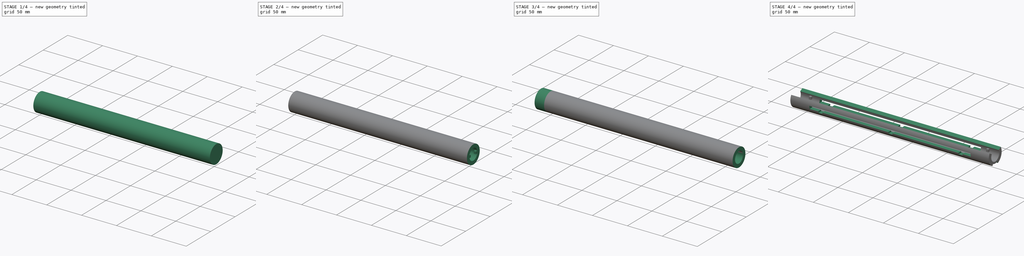
[diagram: build sequence overview — one tinted view per stage of 4, left to right]
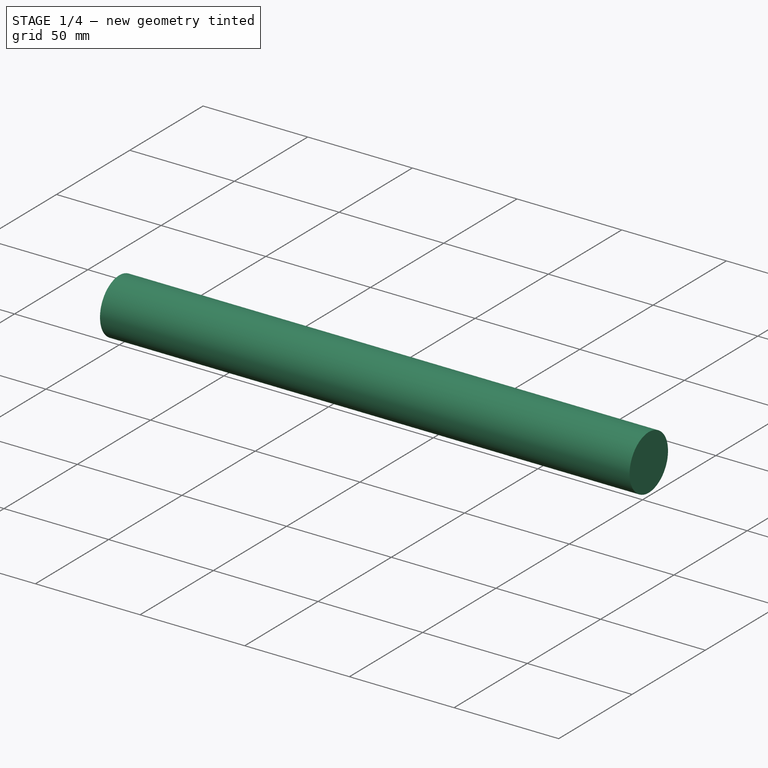
[diagram: stage 1 of 4 — iso view after this stage's code; geometry added in this stage tinted green]
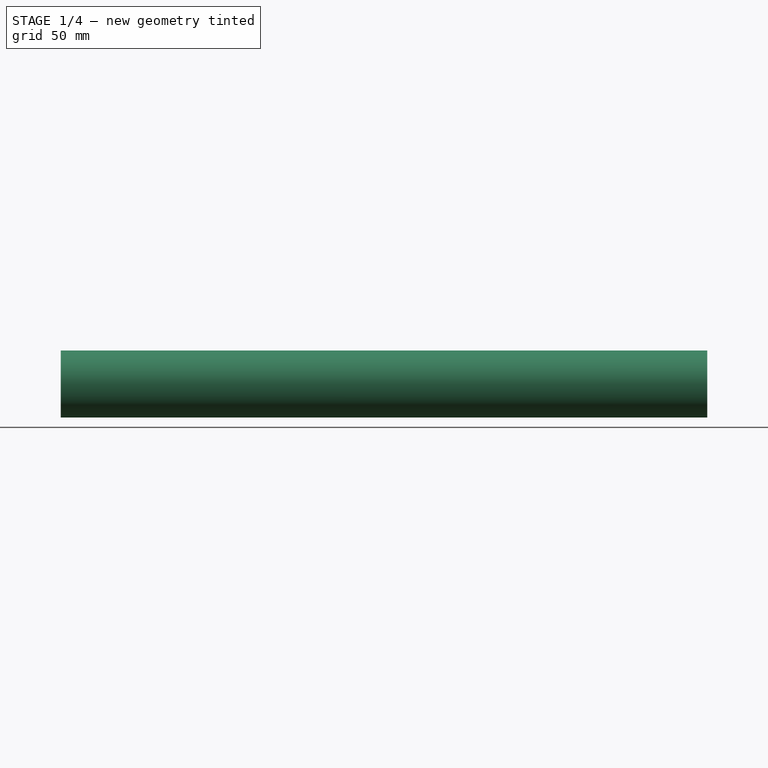
[diagram: stage 1 of 4 — front view after this stage's code; geometry added in this stage tinted green]
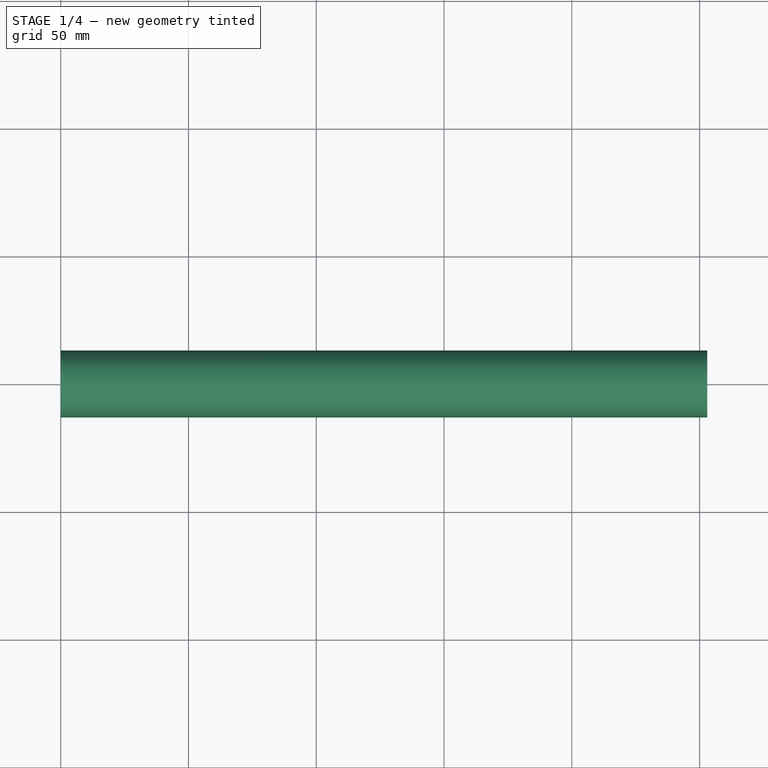
[diagram: stage 1 of 4 — top view after this stage's code; geometry added in this stage tinted green]
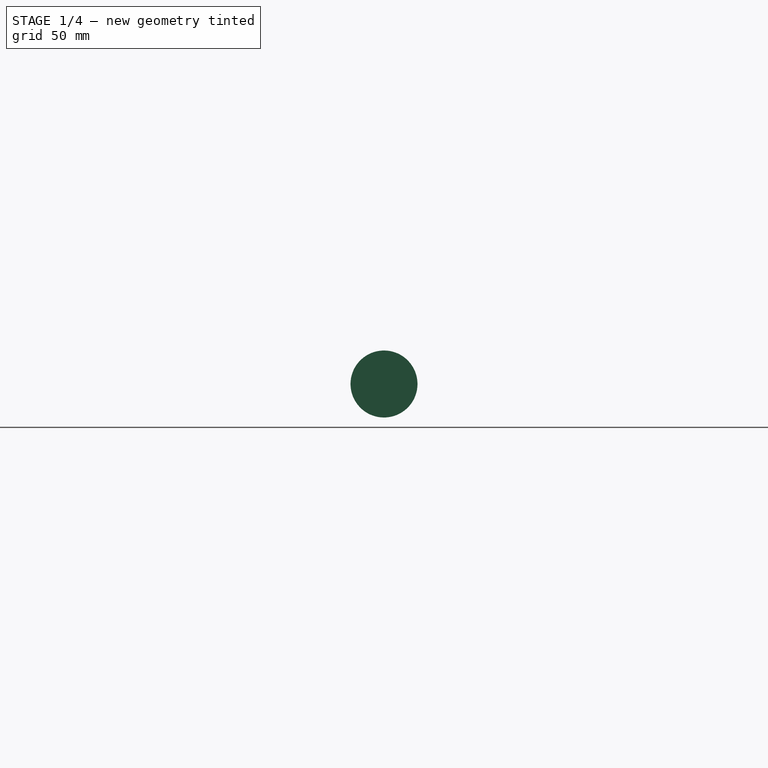
[diagram: stage 1 of 4 — right view after this stage's code; geometry added in this stage tinted green]
FCSTD DOCUMENT  (FreeCAD 1.0R38641 +468 (Git))
Label: probe-holder-shaft-02
License: All rights reserved
LicenseURL: http://en.wikipedia.org/wiki/All_rights_reserved
objects: Sketcher::SketchObject×9, PartDesign::Pad×5, PartDesign::Pocket×4, PartDesign::AdditiveSphere×2, PartDesign::Body×1
note: 52 computed .brp shape members not serialized (recipe doc carries the construction recipe); baked Part::Feature solids carry a one-line shape summary decoded from their .brp

FEATURE [Sketcher::SketchObject] Sketch
  ArcFitTolerance = 1e-06
  AttachmentSupport = -> [YZ_Plane]
  FullyConstrained = true
  MakeInternals = false
  MapMode = 5
  Placement = pos=(0,0,0) rot=(0.57735,0.57735,0.57735;2.0944rad)
  sketch-geometry (9):
    g0: Circle CenterX=4e-16 CenterY=-0.0111456 CenterZ=0 NormalX=0 NormalY=0 NormalZ=1 AngleXU=0 Radius=13.1
    g1: LineSegment StartX=5.1 StartY=-1.8 StartZ=0 EndX=5.1 EndY=1.8 EndZ=0
    g2: LineSegment StartX=-5.1 StartY=-1.8 StartZ=0 EndX=-5.1 EndY=1.8 EndZ=0
    g3: LineSegment StartX=-5.1 StartY=1.8 StartZ=0 EndX=-7.89492 EndY=1.8 EndZ=0
    g4: LineSegment StartX=-5.1 StartY=-1.8 StartZ=0 EndX=-7.9 EndY=-1.8 EndZ=0
    g5: LineSegment StartX=5.1 StartY=1.8 StartZ=0 EndX=7.89492 EndY=1.8 EndZ=0
    g6: LineSegment StartX=5.1 StartY=-1.8 StartZ=0 EndX=7.9 EndY=-1.8 EndZ=0
    g7: ArcOfCircle CenterX=4e-16 CenterY=-0.0111456 CenterZ=0 NormalX=0 NormalY=0 NormalZ=1 AngleXU=0 Radius=8.1 StartAngle=0.225505 EndAngle=2.91609
    g8: ArcOfCircle CenterX=4e-16 CenterY=-0.0111456 CenterZ=0 NormalX=0 NormalY=0 NormalZ=1 AngleXU=0 Radius=8.1 StartAngle=3.36427 EndAngle=6.0605
  constraints (25):
    c: Diameter(g0) = 26.2
    c: DistanceX(g2) = -5.1
    c: DistanceY(g1,g1) = 3.6
    c: Symmetric(g1,g1,g-1)
    c: Symmetric(g2,g2,g-1)
    c: DistanceY(g2,g2) = 3.6
    c: Coincident(g3,g2)
    c: Horizontal(g3)
    c: DistanceY(g4,g3) = 3.6
    c: Coincident(g4,g2)
    c: Coincident(g5,g1)
    c: Horizontal(g5)
    c: Coincident(g6,g1)
    c: Horizontal(g6)
    c: DistanceX(g6,g6) = 2.8
    c: Coincident(g7,g0)
    c: Coincident(g7,g3)
    c: Coincident(g7,g5)
    c: Coincident(g8,g0)
    c: Coincident(g8,g6)
    c: Coincident(g8,g4)
    c: Radius(g7) = 8.1
    c: Radius(g8) = 8.1
    c: DistanceX(g6) = 7.9
    c: DistanceX(g4) = -7.9
FEATURE [PartDesign::Pad] Pad
  Direction = (1,0,0)
  Length = 3
  Length2 = 10
  Placement = pos=(0,0,0) rot=(1,1,1;2.0944rad)
  Profile = -> Sketch
  ReferenceAxis = -> Sketch [N_Axis]
  Refine = true
  Suppressed = false
  Type = 0
FEATURE [PartDesign::AdditiveSphere] Sphere
  Angle1 = -90
  Angle2 = 90
  Angle3 = 360
  AttacherType = Attacher::AttachEngine3D
  AttachmentOffset = pos=(0,0,0.5) rot=(0,0,1;0rad)
  AttachmentSupport = -> [Pad]
  BaseFeature = -> Pad
  MapMode = 45
  Placement = pos=(1.5,-6.5,-1.3) rot=(0,0,1;1.5708rad)
  Radius = 0.8
  Refine = true
  Suppressed = false
FEATURE [Sketcher::SketchObject] Sketch001
  ArcFitTolerance = 1e-06
  FullyConstrained = true
  MakeInternals = false
  MapMode = 5
  Placement = pos=(3,-6.5,-1.8) rot=(0.57735,0.57735,0.57735;2.0944rad)
  sketch-geometry (1):
    g0: Circle CenterX=6.5 CenterY=1.8 CenterZ=0 NormalX=0 NormalY=0 NormalZ=1 AngleXU=0 Radius=13.1
  constraints (3):
    c: DistanceX(g0) = 6.5
    c: DistanceY(g0) = 1.8
    c: Diameter(g0) = 26.2
FEATURE [PartDesign::Pad] Pad001
  BaseFeature = -> Sphere
  Direction = (1,0,0)
  Length = 250
  Length2 = 10
  Placement = pos=(1.5,-6.5,-1.3) rot=(0,0,1;1.5708rad)
  Profile = -> Sketch001
  ReferenceAxis = -> Sketch001 [N_Axis]
  Refine = true
  Suppressed = false
  Type = 0
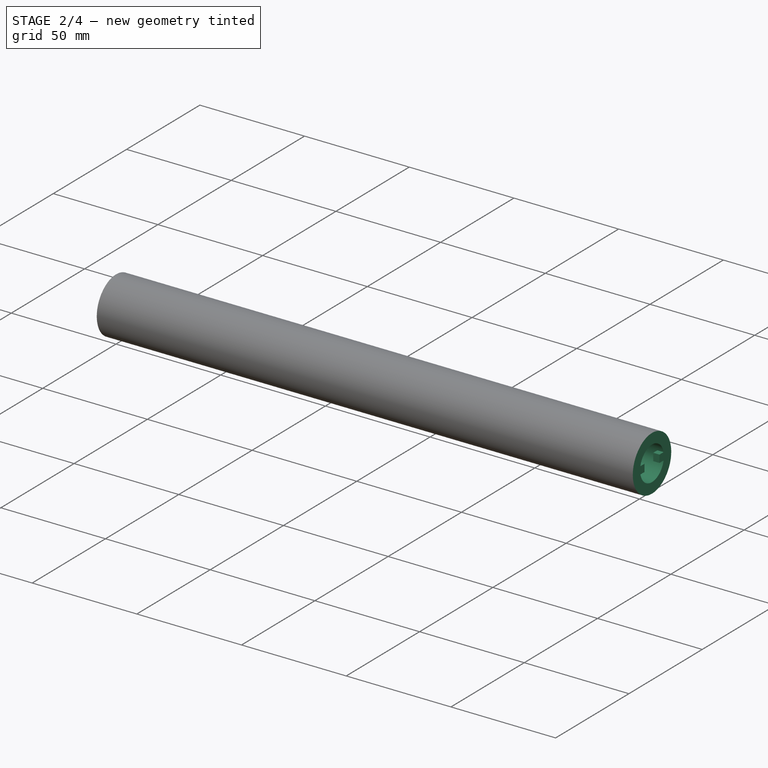
[diagram: stage 2 of 4 — iso view after this stage's code; geometry added in this stage tinted green]
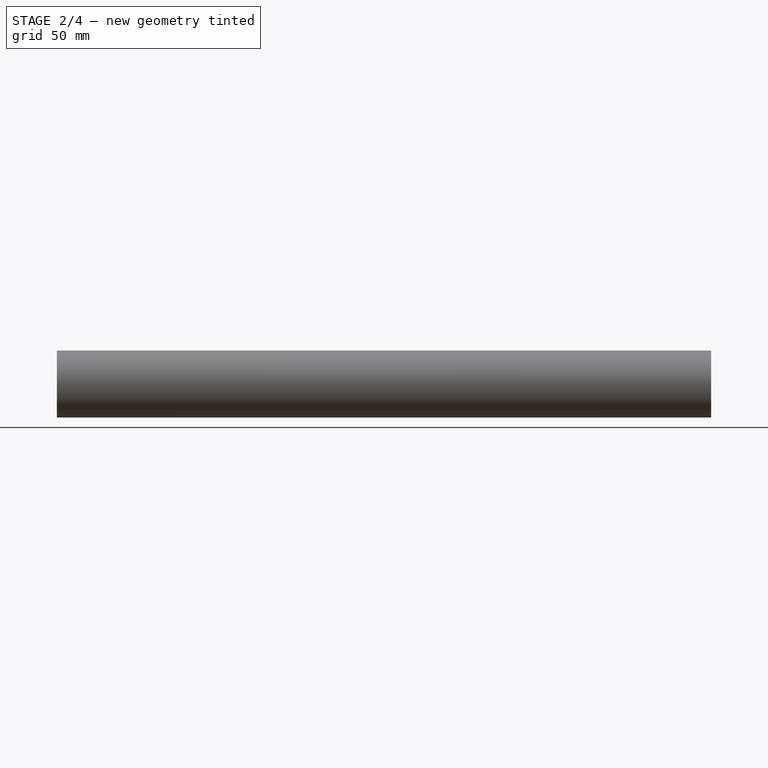
[diagram: stage 2 of 4 — front view after this stage's code; geometry added in this stage tinted green]
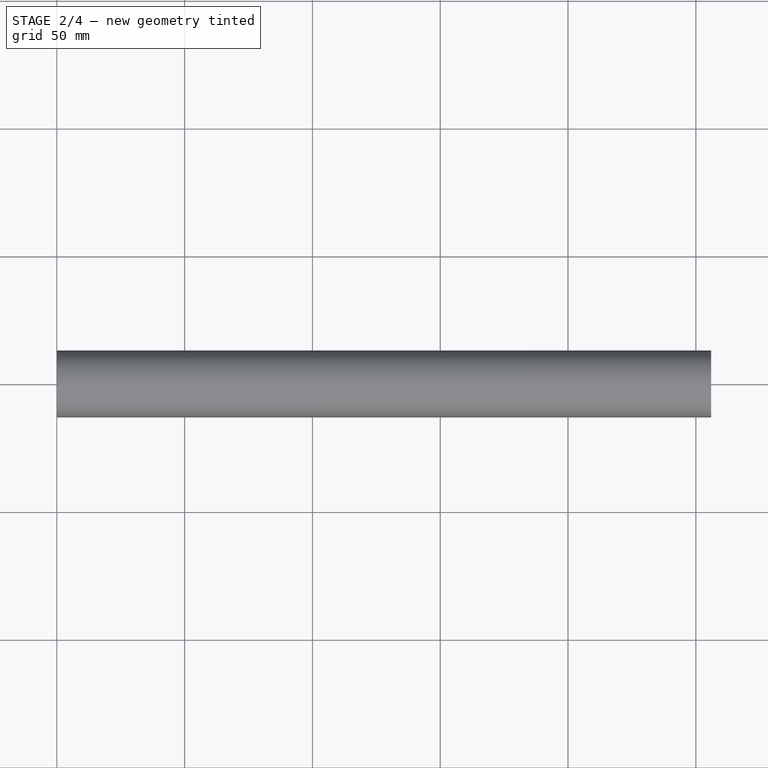
[diagram: stage 2 of 4 — top view after this stage's code; geometry added in this stage tinted green]
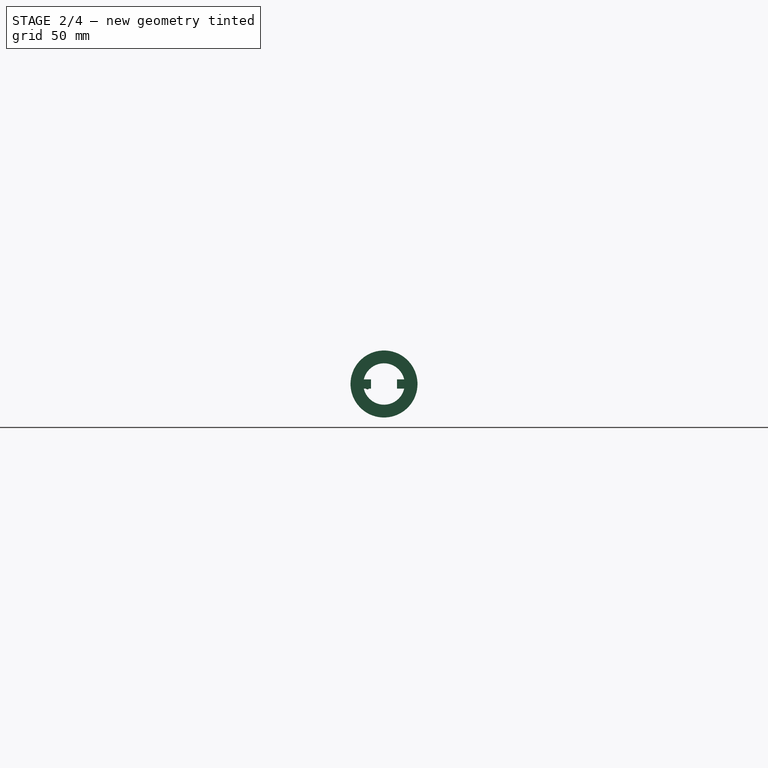
[diagram: stage 2 of 4 — right view after this stage's code; geometry added in this stage tinted green]
FEATURE [Sketcher::SketchObject] Sketch002
  ArcFitTolerance = 1e-06
  FullyConstrained = true
  MakeInternals = false
  MapMode = 5
  Placement = pos=(3,-6.5,-1.8) rot=(0.57735,-0.57735,-0.57735;2.0944rad)
  sketch-geometry (1):
    g0: Circle CenterX=-6.5 CenterY=1.8 CenterZ=0 NormalX=0 NormalY=0 NormalZ=1 AngleXU=0 Radius=8.1
  constraints (3):
    c: DistanceY(g0) = 1.8
    c: DistanceX(g0,g-1) = 6.5
    c: Diameter(g0) = 16.2
FEATURE [PartDesign::Pocket] Pocket
  BaseFeature = -> Pad001
  Direction = (1,0,0)
  Length = 5
  Length2 = 5
  Placement = pos=(1.5,-6.5,-1.3) rot=(0,0,1;1.5708rad)
  Profile = -> Sketch002
  ReferenceAxis = -> Sketch002 [N_Axis]
  Refine = true
  Suppressed = false
  Type = 1
FEATURE [Sketcher::SketchObject] Sketch003
  ArcFitTolerance = 1e-06
  FullyConstrained = true
  MakeInternals = false
  MapMode = 5
  Placement = pos=(253,-6.5,-1.8) rot=(0.57735,0.57735,0.57735;2.0944rad)
  sketch-geometry (9):
    g0: Circle CenterX=6.5 CenterY=1.8 CenterZ=0 NormalX=0 NormalY=0 NormalZ=1 AngleXU=0 Radius=13.1
    g1: LineSegment StartX=11.6 StartY=1.0802e-12 StartZ=0 EndX=11.6 EndY=3.6 EndZ=0
    g2: LineSegment StartX=1.4 StartY=-1e-16 StartZ=0 EndX=1.4 EndY=3.58885 EndZ=0
    g3: LineSegment StartX=1.4 StartY=3.58885 StartZ=0 EndX=-1.4 EndY=3.58885 EndZ=0
    g4: LineSegment StartX=1.4 StartY=-1e-16 StartZ=0 EndX=-1.4 EndY=1.0796e-12 EndZ=0
    g5: LineSegment StartX=11.6 StartY=3.6 StartZ=0 EndX=14.3975 EndY=3.6 EndZ=0
    g6: LineSegment StartX=11.6 StartY=1.0802e-12 StartZ=0 EndX=14.4 EndY=1.0802e-12 EndZ=0
    g7: ArcOfCircle CenterX=6.5 CenterY=1.8 CenterZ=0 NormalX=0 NormalY=0 NormalZ=1 AngleXU=0 Radius=8.1 StartAngle=0.224093 EndAngle=2.91891
    g8: ArcOfCircle CenterX=6.5 CenterY=1.78885 CenterZ=0 NormalX=0 NormalY=0 NormalZ=1 AngleXU=0 Radius=8.1 StartAngle=3.36427 EndAngle=6.0605
  constraints (28):
    c: Diameter(g0) = 26.2
    c: DistanceY(g1,g1) = 3.6
    c: Coincident(g3,g2)
    c: Coincident(g4,g2)
    c: DistanceX(g0) = 6.5
    c: DistanceY(g0) = 1.8
    c: DistanceY(g2,g0) = 1.8
    c: DistanceY(g1,g0) = 1.8
    c: Vertical(g1)
    c: Horizontal(g3)
    c: Horizontal(g5)
    c: Horizontal(g6)
    c: DistanceX(g3) = -1.4
    c: DistanceX(g4) = -1.4
    c: DistanceX(g6) = 14.4
    c: DistanceX(g6,g6) = 2.8
    c: DistanceX(g4,g4) = 2.8
    c: DistanceX(g3,g3) = 2.8
    c: Coincident(g4,g8)
    c: Coincident(g7,g3)
    c: Coincident(g1,g5)
    c: Coincident(g5,g7)
    c: Coincident(g1,g6)
    c: Coincident(g0,g7)
    c: Radius(g7) = 8.1
    c: Radius(g8) = 8.1
    c: Coincident(g6,g8)
    c: DistanceY(g4) = 0
FEATURE [PartDesign::Pad] Pad002
  BaseFeature = -> Pocket
  Direction = (1,0,0)
  Length = 3
  Length2 = 10
  Placement = pos=(1.5,-6.5,-1.3) rot=(0,0,1;1.5708rad)
  Profile = -> Sketch003
  ReferenceAxis = -> Sketch003 [N_Axis]
  Refine = true
  Suppressed = false
  Type = 0
FEATURE [Sketcher::SketchObject] Sketch004
  ArcFitTolerance = 1e-06
  FullyConstrained = true
  MakeInternals = false
  MapMode = 5
  Placement = pos=(256,-6.5,-1.8) rot=(0.57735,0.57735,0.57735;2.0944rad)
  sketch-geometry (2):
    g0: Circle CenterX=6.5 CenterY=1.8 CenterZ=0 NormalX=0 NormalY=0 NormalZ=1 AngleXU=0 Radius=13.1
    g1: Circle CenterX=6.5 CenterY=1.8 CenterZ=0 NormalX=0 NormalY=0 NormalZ=1 AngleXU=0 Radius=8.1
  constraints (5):
    c: Diameter(g0) = 26.2
    c: DistanceY(g0) = 1.8
    c: DistanceX(g0) = 6.5
    c: Coincident(g1,g0)
    c: Diameter(g1) = 16.2
FEATURE [Sketcher::SketchObject] Sketch005
  ArcFitTolerance = 1e-06
  FullyConstrained = true
  MakeInternals = false
  MapMode = 5
  Placement = pos=(0,-6.5,-1.8) rot=(0.57735,-0.57735,-0.57735;2.0944rad)
  sketch-geometry (2):
    g0: Circle CenterX=-6.5 CenterY=1.8 CenterZ=0 NormalX=0 NormalY=0 NormalZ=1 AngleXU=0 Radius=13.1
    g1: Circle CenterX=-6.5 CenterY=1.8 CenterZ=0 NormalX=0 NormalY=0 NormalZ=1 AngleXU=0 Radius=8.1
  constraints (5):
    c: DistanceX(g0) = -6.5
    c: DistanceY(g0) = 1.8
    c: Diameter(g0) = 26.2
    c: Diameter(g1) = 16.2
    c: Coincident(g0,g1)
FEATURE [Sketcher::SketchObject] Sketch006
  ArcFitTolerance = 1e-06
  FullyConstrained = true
  MakeInternals = false
  MapMode = 5
  Placement = pos=(269.6,-6.5,-1.8) rot=(0.57735,0.57735,0.57735;2.0944rad)
  sketch-geometry (4):
    g0: ArcOfCircle CenterX=6.5 CenterY=1.8 CenterZ=0 NormalX=0 NormalY=0 NormalZ=1 AngleXU=0 Radius=7.9 StartAngle=0.531544 EndAngle=2.61005
    g1: ArcOfCircle CenterX=6.5 CenterY=1.8 CenterZ=0 NormalX=0 NormalY=0 NormalZ=1 AngleXU=0 Radius=13.1 StartAngle=0.523599 EndAngle=2.61799
    g2: LineSegment StartX=-0.31 StartY=5.80424 StartZ=0 EndX=-4.84493 EndY=8.35 EndZ=0
    g3: LineSegment StartX=13.31 StartY=5.80424 StartZ=0 EndX=17.8449 EndY=8.35 EndZ=0
  constraints (13):
    c: Radius(g0) = 7.9
    c: Radius(g1) = 13.1
    c: Angle(g1) = 2.0944
    c: Coincident(g1,g0)
    c: Coincident(g2,g0)
    c: Coincident(g2,g1)
    c: Coincident(g3,g0)
    c: Coincident(g3,g1)
    c: DistanceY(g0) = 1.8
    c: DistanceX(g0) = 6.5
    c: Horizontal(g0,g0)
    c: Horizontal(g1,g1)
    c: DistanceX(g0) = 13.31
FEATURE [Sketcher::SketchObject] Sketch007
  ArcFitTolerance = 1e-06
  FullyConstrained = true
  MakeInternals = false
  MapMode = 5
  Placement = pos=(269.6,-6.5,-1.8) rot=(0.57735,0.57735,0.57735;2.0944rad)
  sketch-geometry (4):
    g0: ArcOfCircle CenterX=6.3435 CenterY=1.82368 CenterZ=0 NormalX=0 NormalY=0 NormalZ=1 AngleXU=0 Radius=10.6 StartAngle=4.28435 EndAngle=5.14043
    g1: ArcOfCircle CenterX=6.3435 CenterY=1.82368 CenterZ=0 NormalX=0 NormalY=0 NormalZ=1 AngleXU=0 Radius=15.01 StartAngle=4.27606 EndAngle=5.14872
    g2: LineSegment StartX=1.94356 StartY=-7.82 StartZ=0 EndX=-1.8e-15 EndY=-11.78 EndZ=0
    g3: LineSegment StartX=10.7434 StartY=-7.82 StartZ=0 EndX=12.687 EndY=-11.78 EndZ=0
  constraints (13):
    c: Radius(g0) = 10.6
    c: Angle(g1) = 0.872665
    c: Coincident(g1,g0)
    c: PointOnObject(g1,g-2)
    c: Radius(g1) = 15.01
    c: DistanceY(g1) = -11.78
    c: DistanceY(g0) = -7.82
    c: Horizontal(g0,g0)
    c: Horizontal(g1,g1)
    c: Coincident(g2,g0)
    c: Coincident(g2,g1)
    c: Coincident(g3,g0)
    c: Coincident(g3,g1)
FEATURE [PartDesign::AdditiveSphere] Sphere001
  Angle1 = -90
  Angle2 = 90
  Angle3 = 360
  AttacherType = Attacher::AttachEngine3D
  AttachmentOffset = pos=(0,0,0.5) rot=(0,0,1;0rad)
  AttachmentSupport = -> [Pad002]
  BaseFeature = -> Pad002
  MapMode = 45
  Placement = pos=(254.5,-6.5,-1.3) rot=(0,0,1;1.5708rad)
  Radius = 0.8
  Refine = true
  Suppressed = false
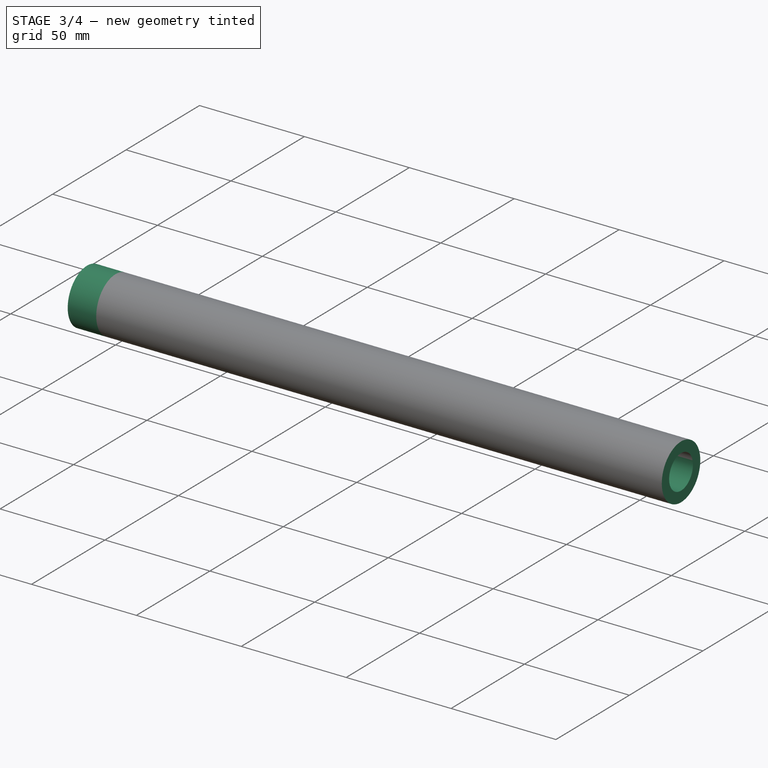
[diagram: stage 3 of 4 — iso view after this stage's code; geometry added in this stage tinted green]
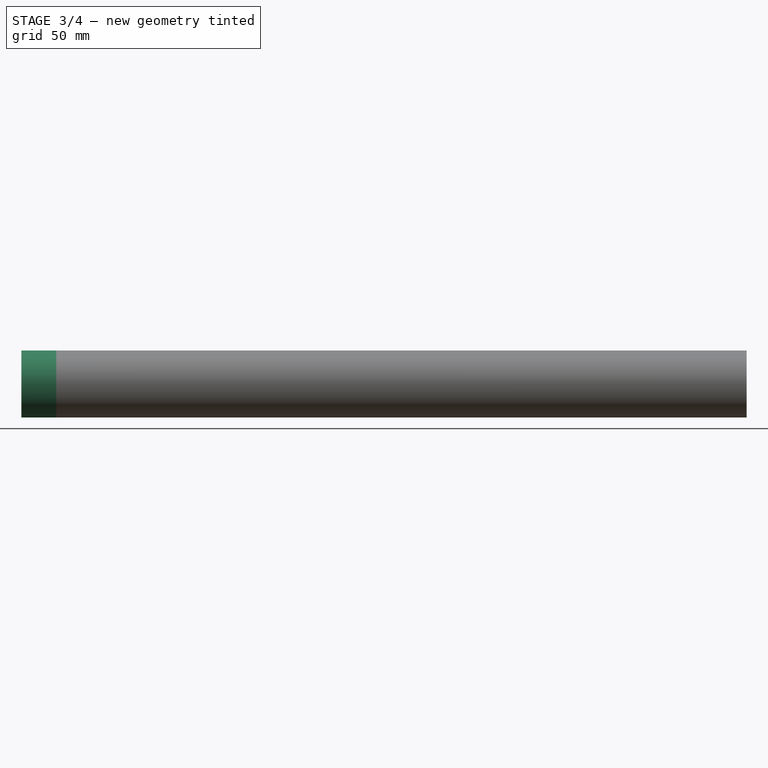
[diagram: stage 3 of 4 — front view after this stage's code; geometry added in this stage tinted green]
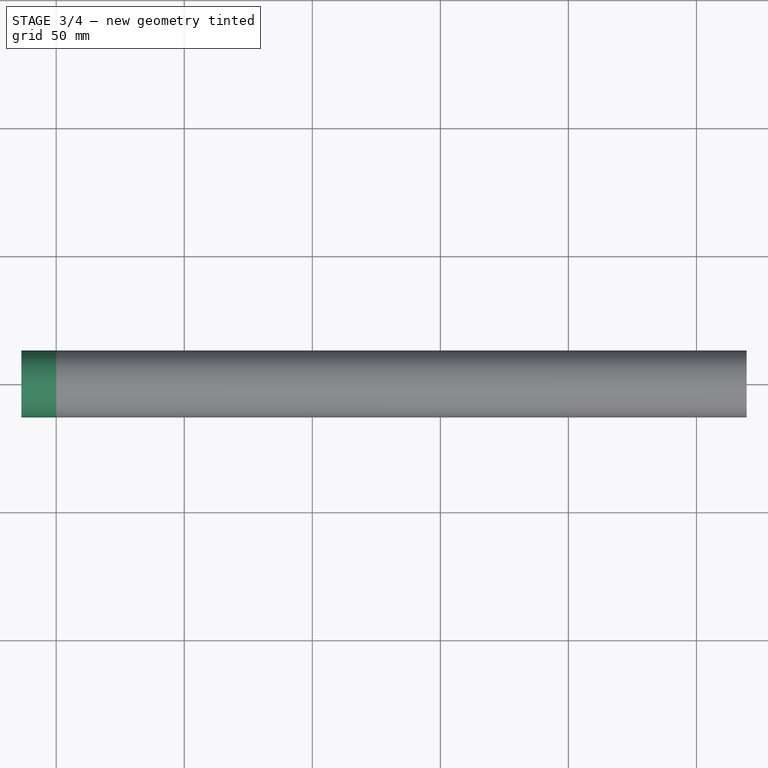
[diagram: stage 3 of 4 — top view after this stage's code; geometry added in this stage tinted green]
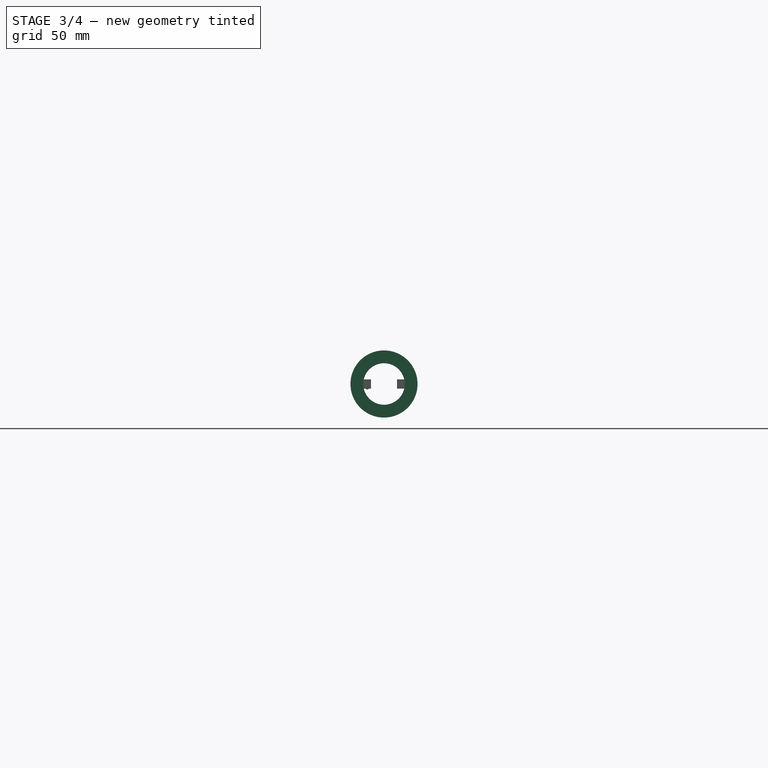
[diagram: stage 3 of 4 — right view after this stage's code; geometry added in this stage tinted green]
FEATURE [PartDesign::Pad] Pad003
  BaseFeature = -> Sphere001
  Direction = (1,0,0)
  Length = 13.6
  Length2 = 10
  Placement = pos=(254.5,-6.5,-1.3) rot=(0,0,1;1.5708rad)
  Profile = -> Sketch004
  ReferenceAxis = -> Sketch004 [N_Axis]
  Refine = true
  Suppressed = false
  Type = 0
FEATURE [PartDesign::Pad] Pad004
  BaseFeature = -> Pad003
  Direction = (-1,0,0)
  Length = 13.6
  Length2 = 10
  Placement = pos=(254.5,-6.5,-1.3) rot=(0,0,1;1.5708rad)
  Profile = -> Sketch005
  ReferenceAxis = -> Sketch005 [N_Axis]
  Refine = true
  Suppressed = false
  Type = 0
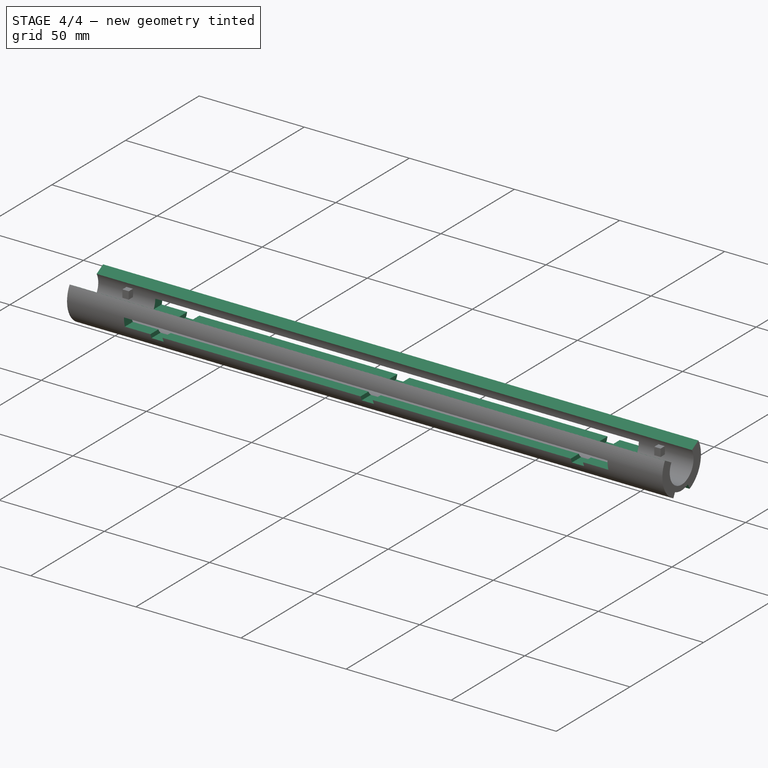
[diagram: stage 4 of 4 — iso view after this stage's code; geometry added in this stage tinted green]
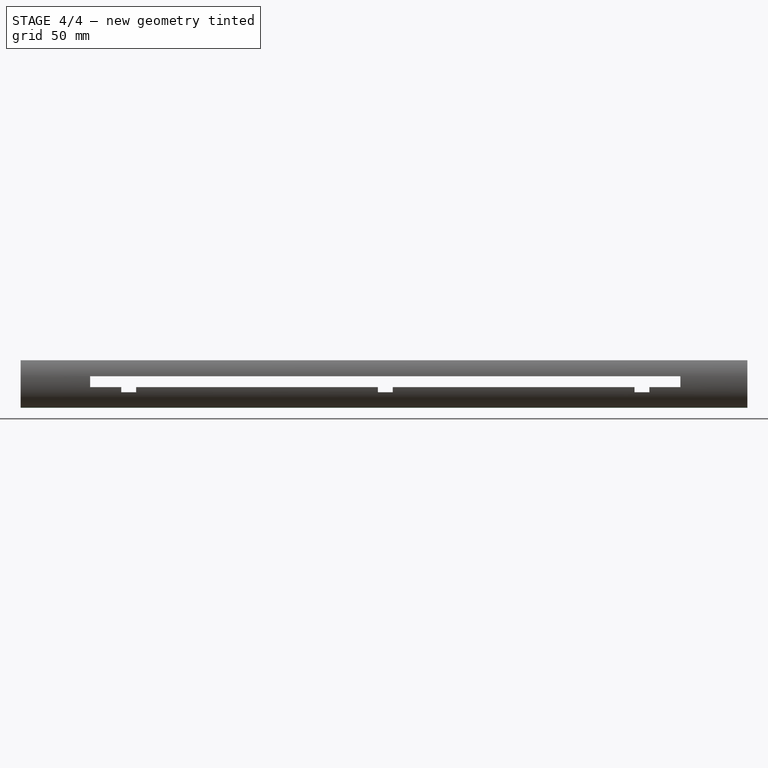
[diagram: stage 4 of 4 — front view after this stage's code; geometry added in this stage tinted green]
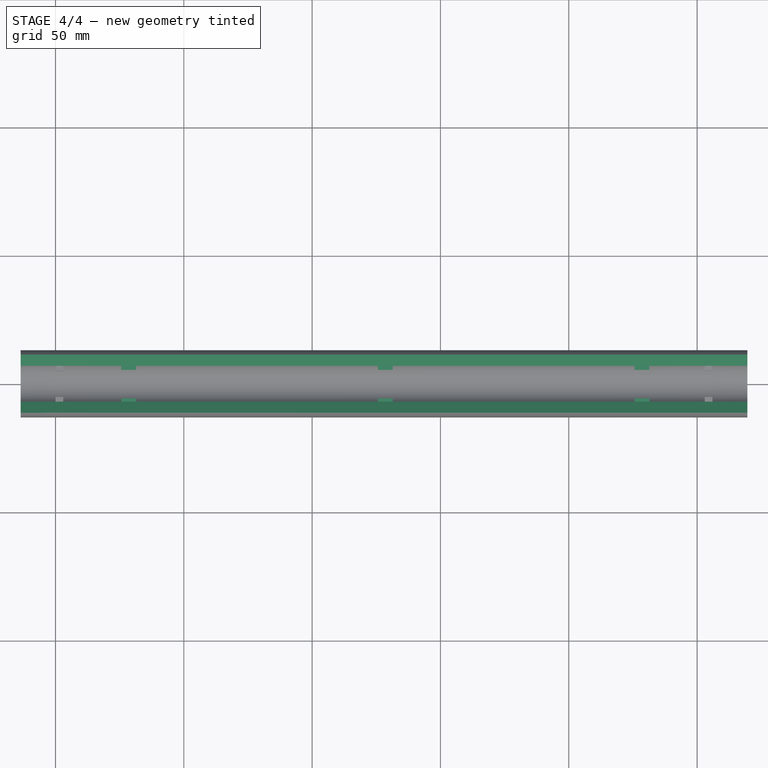
[diagram: stage 4 of 4 — top view after this stage's code; geometry added in this stage tinted green]
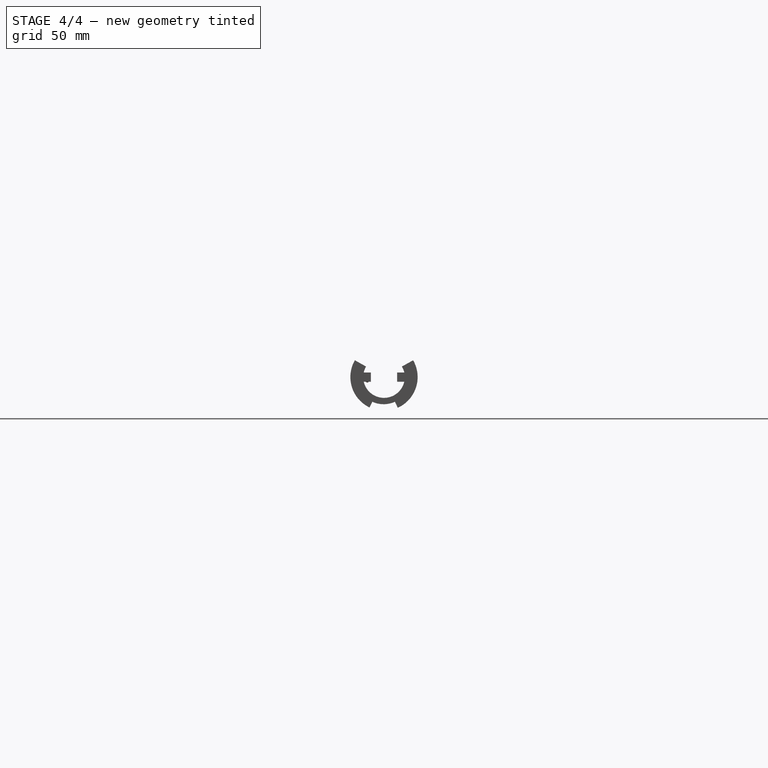
[diagram: stage 4 of 4 — right view after this stage's code; geometry added in this stage tinted green]
FEATURE [PartDesign::Pocket] Pocket001
  BaseFeature = -> Pad004
  Direction = (-1,0,0)
  Length = 5
  Length2 = 5
  Placement = pos=(254.5,-6.5,-1.3) rot=(0,0,1;1.5708rad)
  Profile = -> Sketch006
  ReferenceAxis = -> Sketch006 [N_Axis]
  Refine = true
  Suppressed = false
  Type = 1
FEATURE [PartDesign::Pocket] Pocket002
  BaseFeature = -> Pocket001
  Direction = (-1,0,0)
  Length = 5
  Length2 = 5
  Placement = pos=(254.5,-6.5,-1.3) rot=(0,0,1;1.5708rad)
  Profile = -> Sketch007
  ReferenceAxis = -> Sketch007 [N_Axis]
  Refine = true
  Suppressed = false
  Type = 1
FEATURE [Sketcher::SketchObject] Sketch008
  ArcFitTolerance = 1e-06
  FullyConstrained = true
  MakeInternals = false
  MapMode = 5
  Placement = pos=(254.5,5.1,-1.8) rot=(1,0,0;1.5708rad)
  sketch-geometry (16):
    g0: LineSegment StartX=-11 StartY=2.1 StartZ=0 EndX=-241 EndY=2.1 EndZ=0
    g1: LineSegment StartX=-241 StartY=2.1 StartZ=0 EndX=-241 EndY=-2.1 EndZ=0
    g2: LineSegment StartX=-241 StartY=-2.1 StartZ=0 EndX=-11 EndY=-2.1 EndZ=0
    g3: LineSegment StartX=-11 StartY=-2.1 StartZ=0 EndX=-11 EndY=2.1 EndZ=0
    g4: LineSegment StartX=-128.9 StartY=-2.1 StartZ=0 EndX=-128.9 EndY=-4.1 EndZ=0
    g5: LineSegment StartX=-128.9 StartY=-4.1 StartZ=0 EndX=-123.1 EndY=-4.1 EndZ=0
    g6: LineSegment StartX=-123.1 StartY=-4.1 StartZ=0 EndX=-123.1 EndY=-2.1 EndZ=0
    g7: LineSegment StartX=-123.1 StartY=-2.1 StartZ=0 EndX=-128.9 EndY=-2.1 EndZ=0
    g8: LineSegment StartX=-28.9 StartY=-2.1 StartZ=0 EndX=-28.9 EndY=-4.1 EndZ=0
    g9: LineSegment StartX=-28.9 StartY=-4.1 StartZ=0 EndX=-23.1 EndY=-4.1 EndZ=0
    g10: LineSegment StartX=-23.1 StartY=-4.1 StartZ=0 EndX=-23.1 EndY=-2.1 EndZ=0
    g11: LineSegment StartX=-23.1 StartY=-2.1 StartZ=0 EndX=-28.9 EndY=-2.1 EndZ=0
    g12: LineSegment StartX=-228.9 StartY=-2.1 StartZ=0 EndX=-228.9 EndY=-4.1 EndZ=0
    g13: LineSegment StartX=-228.9 StartY=-4.1 StartZ=0 EndX=-223.1 EndY=-4.1 EndZ=0
    g14: LineSegment StartX=-223.1 StartY=-4.1 StartZ=0 EndX=-223.1 EndY=-2.1 EndZ=0
    g15: LineSegment StartX=-223.1 StartY=-2.1 StartZ=0 EndX=-228.9 EndY=-2.1 EndZ=0
  constraints (44):
    c: Coincident(g0,g1)
    c: Coincident(g1,g2)
    c: Coincident(g2,g3)
    c: Coincident(g3,g0)
    c: Horizontal(g0)
    c: Horizontal(g2)
    c: Vertical(g1)
    c: Distance(g1,g3) = 230
    c: DistanceX(g0) = -11
    c: Symmetric(g0,g2,g-1)
    c: DistanceY(g3,g3) = 4.2
    c: Coincident(g4,g5)
    c: Coincident(g5,g6)
    c: Coincident(g6,g7)
    c: Coincident(g7,g4)
    c: Vertical(g4)
    c: Vertical(g6)
    c: Horizontal(g5)
    c: DistanceX(g5,g5) = 5.8
    c: DistanceY(g6,g6) = 2
    c: Tangent(g7,g2)
    c: DistanceX(g5) = -123.1
    c: Coincident(g8,g9)
    c: Coincident(g9,g10)
    c: Coincident(g10,g11)
    c: Coincident(g11,g8)
    c: Vertical(g8)
    c: Vertical(g10)
    c: Horizontal(g9)
    c: DistanceY(g10,g10) = 2
    c: DistanceX(g9,g9) = 5.8
    c: Tangent(g11,g2)
    c: DistanceX(g9) = -23.1
    c: Coincident(g12,g13)
    c: Coincident(g13,g14)
    c: Coincident(g14,g15)
    c: Coincident(g15,g12)
    c: Vertical(g12)
    c: Vertical(g14)
    c: Horizontal(g13)
    c: DistanceY(g14,g14) = 2
    c: DistanceX(g13,g13) = 5.8
    c: Tangent(g15,g2)
    c: DistanceX(g13) = -223.1
FEATURE [PartDesign::Pocket] Pocket003
  BaseFeature = -> Pocket002
  Direction = (1.2e-15,1,-2e-16)
  Length = 5
  Length2 = 5
  Midplane = true
  Placement = pos=(254.5,-6.5,-1.3) rot=(0,0,1;1.5708rad)
  Profile = -> Sketch008
  ReferenceAxis = -> Sketch008 [N_Axis]
  Refine = true
  Suppressed = false
  Type = 1
FEATURE [PartDesign::Body] Body
  AllowCompound = false
  Group = -> [Sketch,Pad,Sphere,Sketch001,Pad001,Sketch002,Pocket,Sketch003,Pad002,Sphere001,Sketch004,Pad003,Sketch005,Pad004,Sketch006,Pocket001,Sketch007,Pocket002,Sketch008,Pocket003]
  Origin = -> Origin
  Tip = -> Pocket003
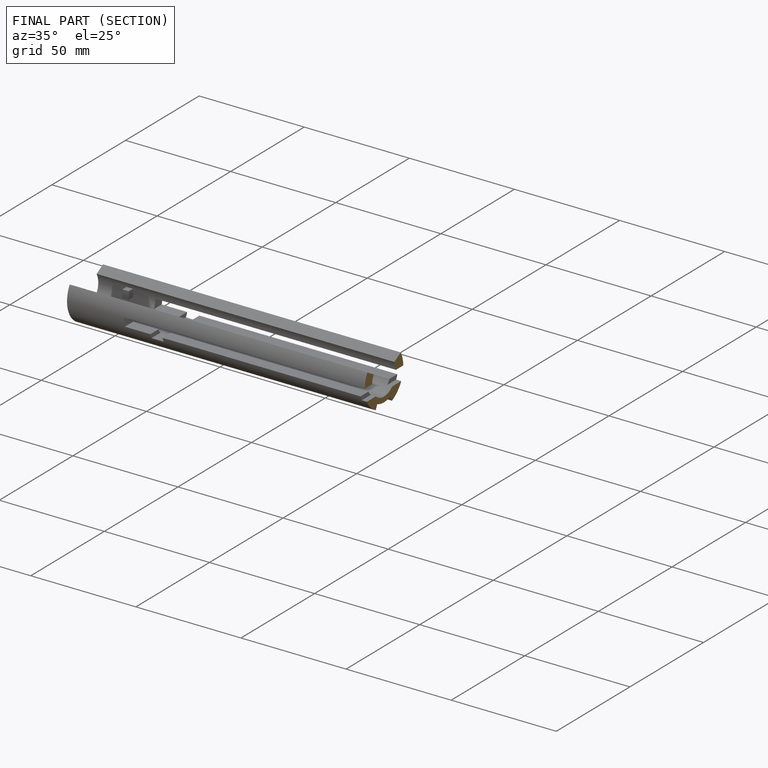
[diagram: finished part — half-section view (interior)]
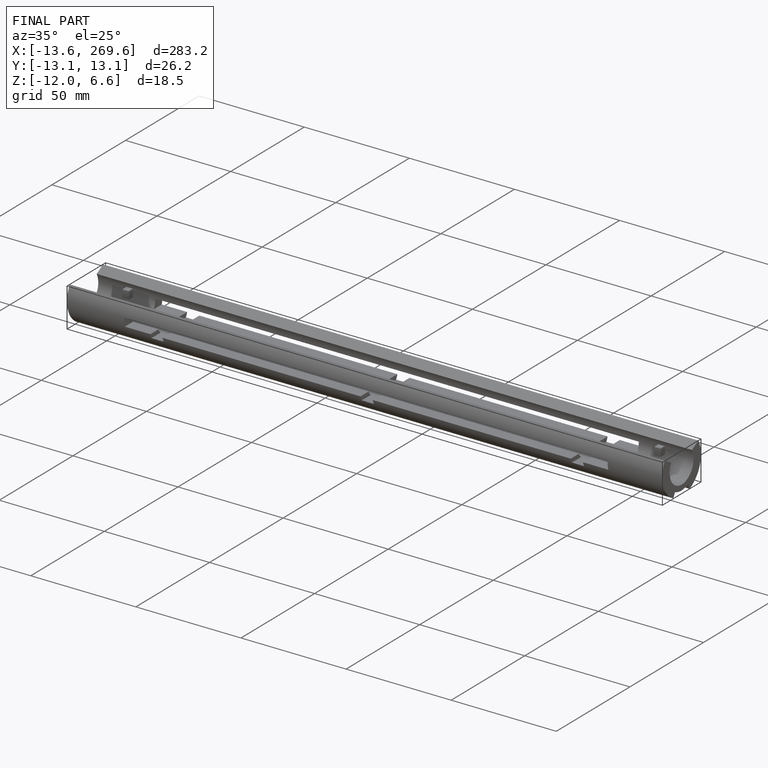
[diagram: finished part — iso view with bounding-box wireframe]
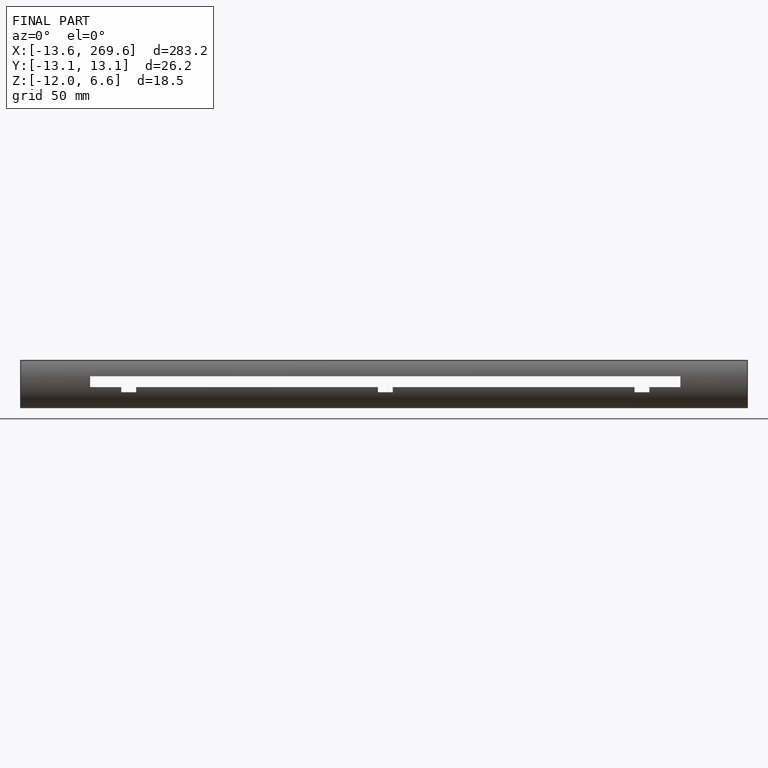
[diagram: finished part — front view with bounding-box wireframe]
